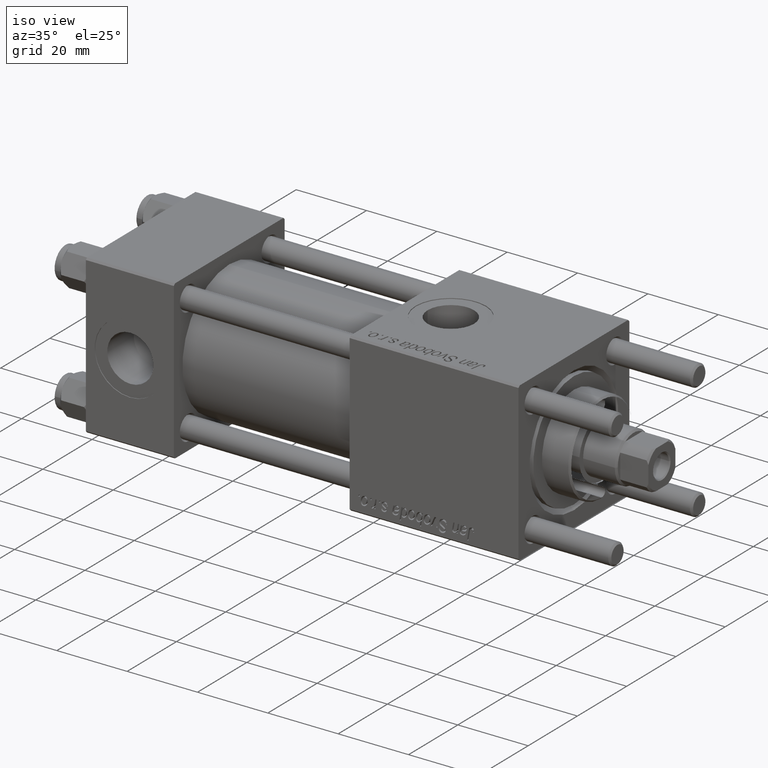
[diagram: clean part render]
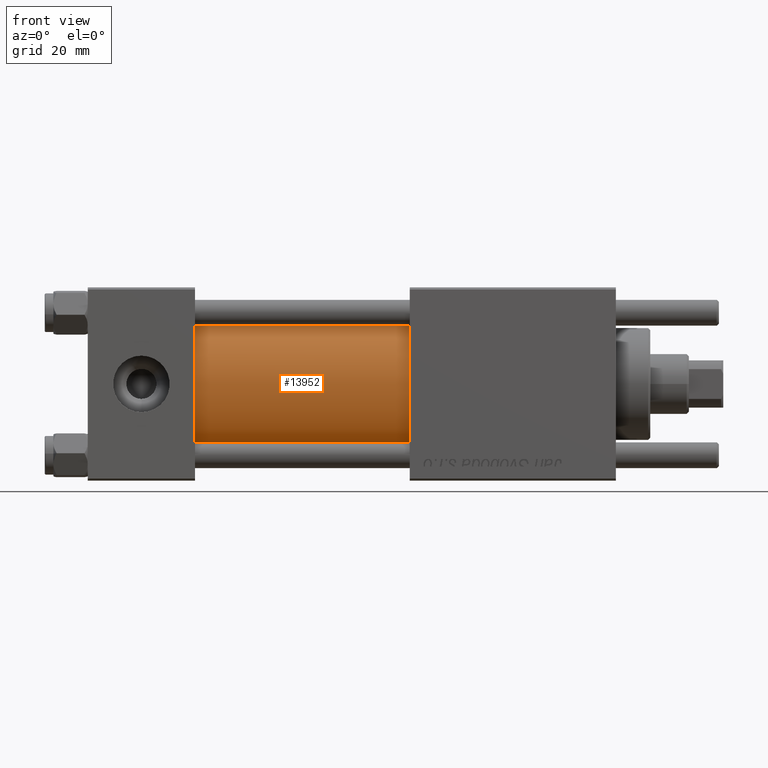
[diagram: tour spotlight — one face highlighted and labeled with its STEP entity id]
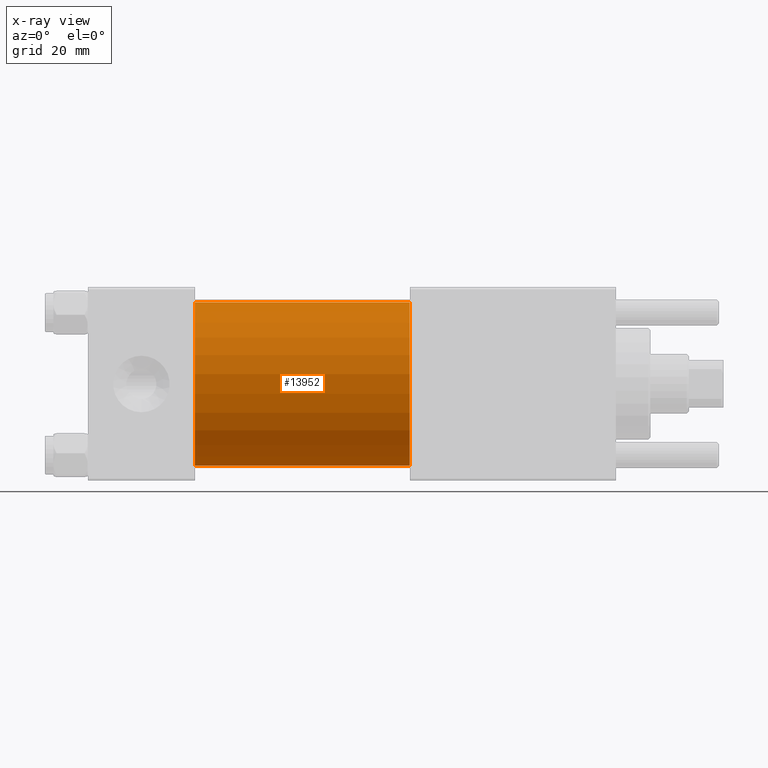
[diagram: x-ray of the same camera — body ghosted, this tour face saturated]
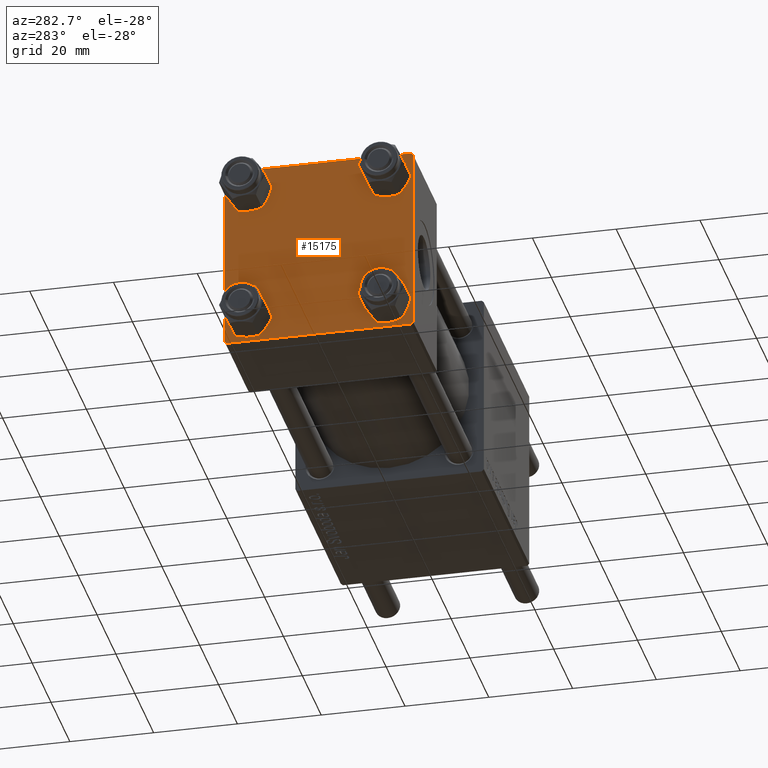
[diagram: tour spotlight — one face highlighted and labeled with its STEP entity id]
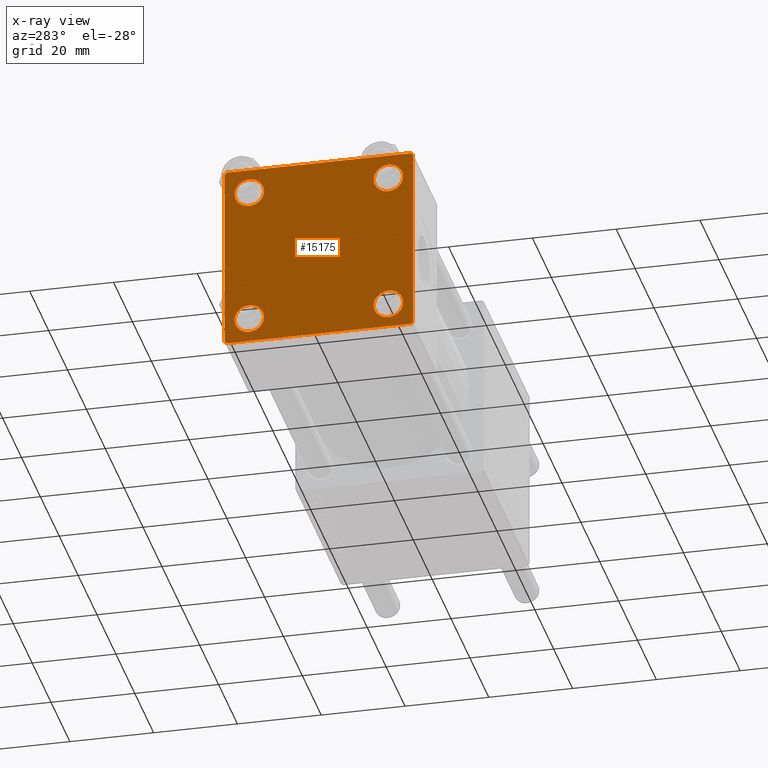
[diagram: x-ray of the same camera — body ghosted, this tour face saturated]
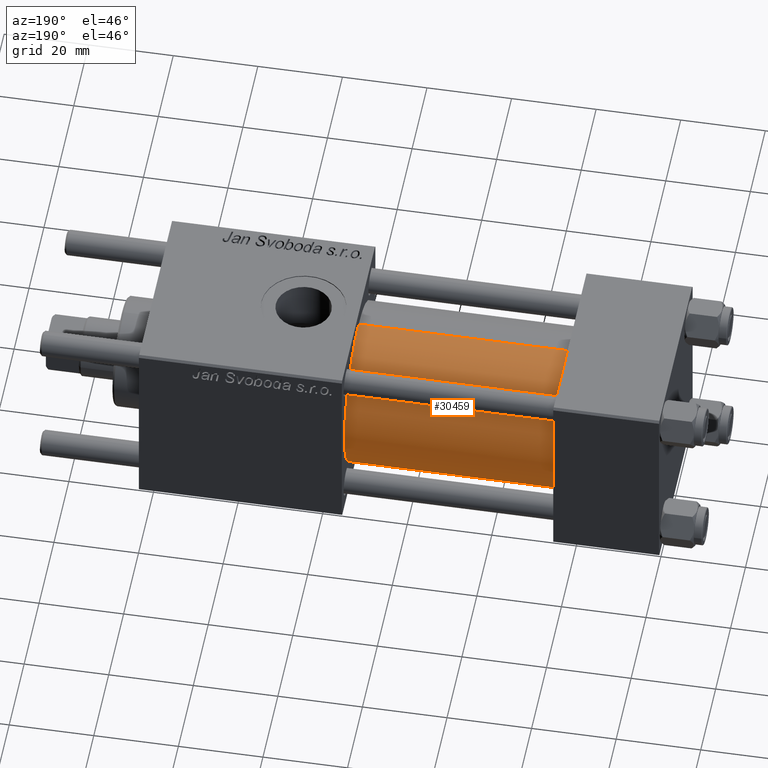
[diagram: tour spotlight — one face highlighted and labeled with its STEP entity id]
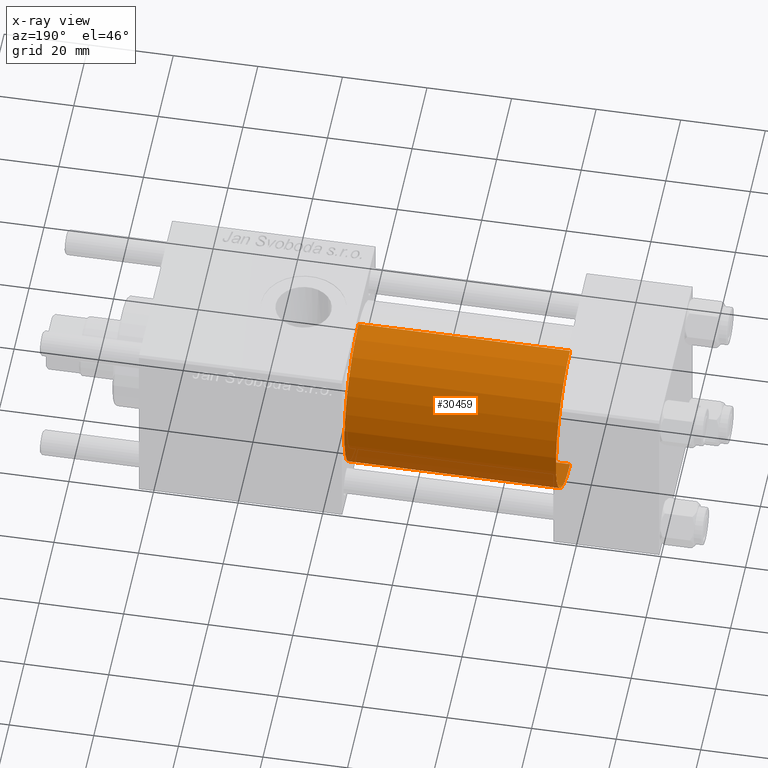
[diagram: x-ray of the same camera — body ghosted, this tour face saturated]
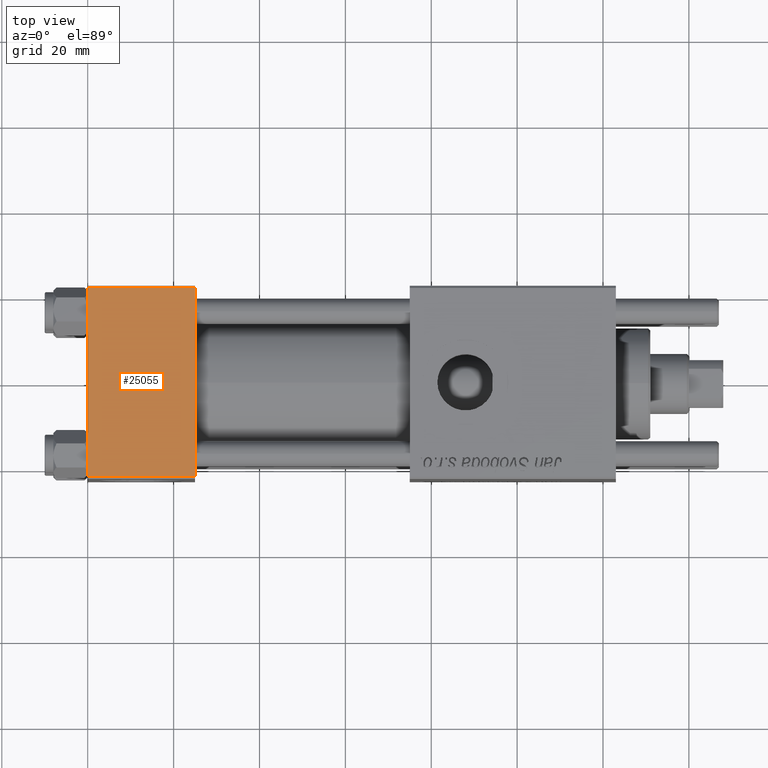
[diagram: tour spotlight — one face highlighted and labeled with its STEP entity id]
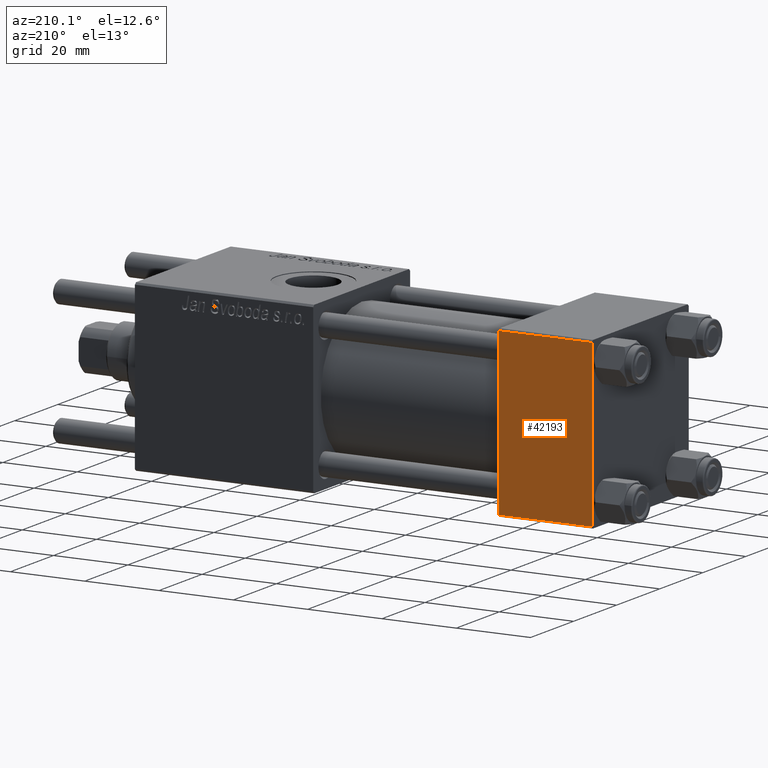
[diagram: tour spotlight — one face highlighted and labeled with its STEP entity id]
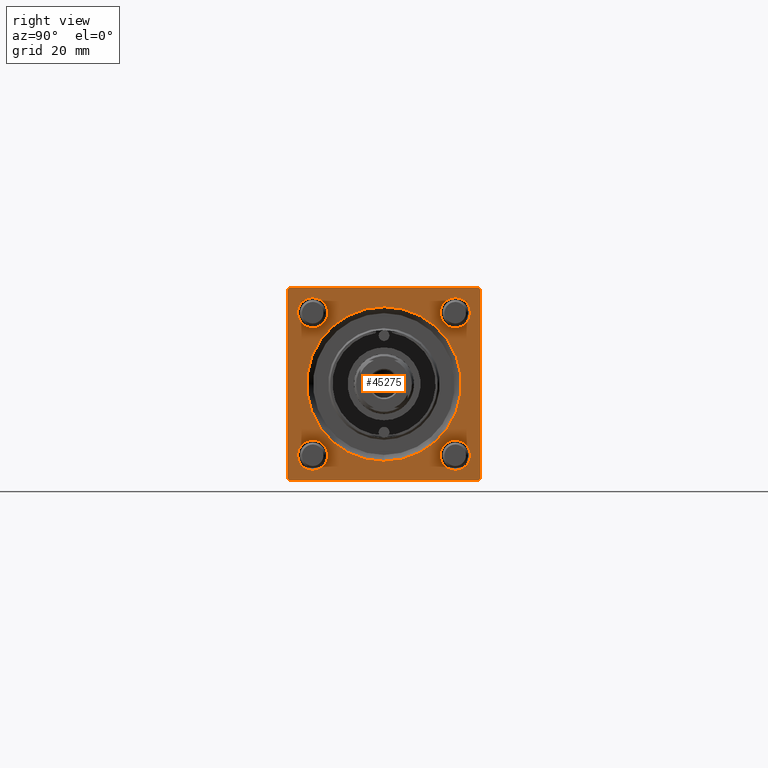
[diagram: tour spotlight — one face highlighted and labeled with its STEP entity id]
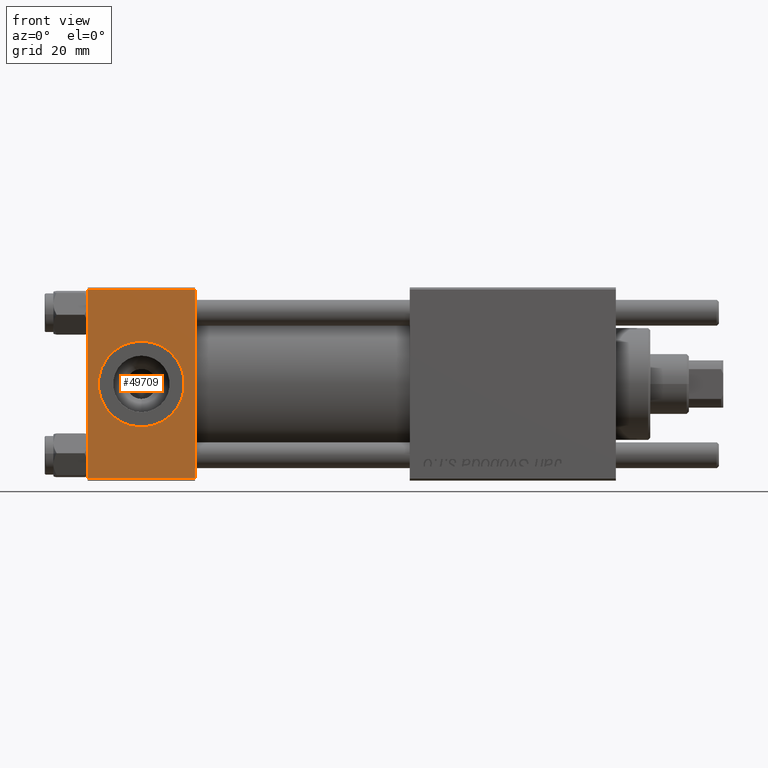
[diagram: tour spotlight — one face highlighted and labeled with its STEP entity id]
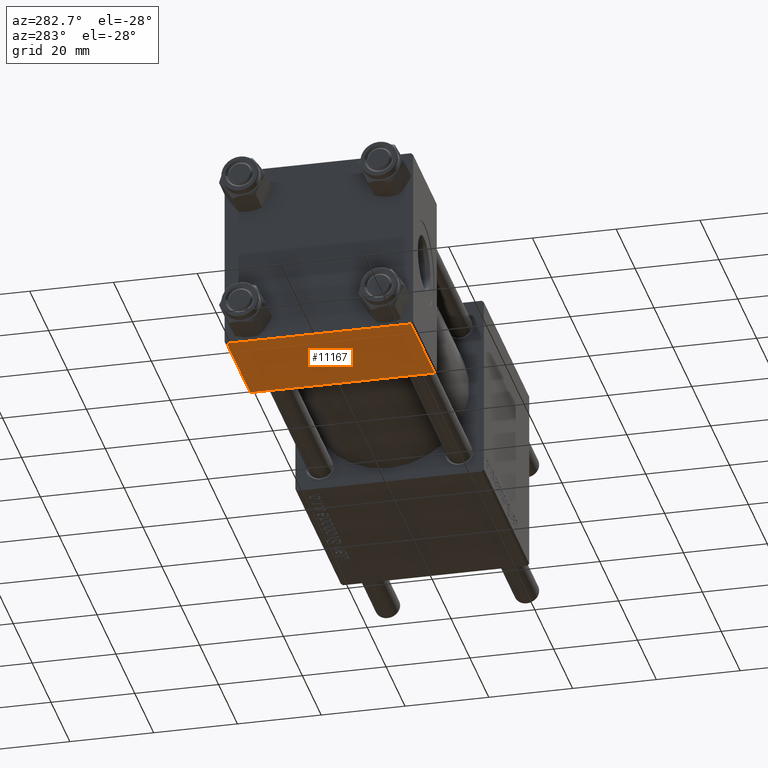
[diagram: tour spotlight — one face highlighted and labeled with its STEP entity id]
A machine part: a face-by-face anatomy tour. The part has 1162 B-rep faces; the first image is the clean iso view, then the 8 largest visible faces are spotlighted one at a time (largest first), each with its STEP entity span.

Face 1 — front view, entity #13952. An x-ray twin of the same camera follows (body ghosted, this face saturated) — the face is partly hidden behind the body. In plain terms, the highlighted cylindrical surface (partial cylindrical patch) has radius 19 mm, axis along (-1, -0, -0).
Definition (entity closure, byte-faithful):
#1939 = EDGE_CURVE ( 'NONE', #27965, #29925, #26414, .T. ) ;
#4153 = VERTEX_POINT ( 'NONE', #33216 ) ;
#7088 = AXIS2_PLACEMENT_3D ( 'NONE', #42812, #7385, #20351 ) ;
#7385 = DIRECTION ( 'NONE',  ( 1.000000000000000000, -0.000000000000000000, 0.000000000000000000 ) ) ;
#7469 = DIRECTION ( 'NONE',  ( 0.000000000000000000, 0.000000000000000000, 1.000000000000000000 ) ) ;
#7795 = ORIENTED_EDGE ( 'NONE', *, *, #45596, .F. ) ;
#10086 = LINE ( 'NONE', #10377, #44796 ) ;
#10377 = CARTESIAN_POINT ( 'NONE',  ( 75.00000000000001421, -2.752562955852396712E-16, -19.00000000000000000 ) ) ;
#12075 = DIRECTION ( 'NONE',  ( -1.000000000000000000, -0.000000000000000000, -0.000000000000000000 ) ) ;
#13952 = ADVANCED_FACE ( 'NONE', ( #33960 ), #51810, .T. ) ;
#17952 = CARTESIAN_POINT ( 'NONE',  ( 25.00000000000000000, -2.602085213965210642E-15, 19.00000000000000000 ) ) ;
#18656 = CARTESIAN_POINT ( 'NONE',  ( 25.00000000000000000, -2.752562955852396712E-16, -19.00000000000000000 ) ) ;
#20351 = DIRECTION ( 'NONE',  ( 0.000000000000000000, 0.000000000000000000, 1.000000000000000000 ) ) ;
#22696 = CARTESIAN_POINT ( 'NONE',  ( 75.00000000000001421, -2.602085213965210642E-15, 19.00000000000000000 ) ) ;
#23710 = AXIS2_PLACEMENT_3D ( 'NONE', #51776, #37373, #25287 ) ;
#25287 = DIRECTION ( 'NONE',  ( 0.000000000000000000, 0.000000000000000000, -1.000000000000000000 ) ) ;
#26414 = CIRCLE ( 'NONE', #7088, 19.00000000000000000 ) ;
#26446 = EDGE_LOOP ( 'NONE', ( #28446, #7795, #37067, #37032 ) ) ;
#27965 = VERTEX_POINT ( 'NONE', #17952 ) ;
#28446 = ORIENTED_EDGE ( 'NONE', *, *, #39453, .F. ) ;
#28881 = EDGE_CURVE ( 'NONE', #32479, #27965, #50724, .T. ) ;
#29925 = VERTEX_POINT ( 'NONE', #18656 ) ;
#30160 = CIRCLE ( 'NONE', #23710, 19.00000000000000000 ) ;
#32442 = VECTOR ( 'NONE', #42374, 1000.000000000000000 ) ;
#32479 = VERTEX_POINT ( 'NONE', #22696 ) ;
#33216 = CARTESIAN_POINT ( 'NONE',  ( 75.00000000000001421, -2.752562955852396712E-16, -19.00000000000000000 ) ) ;
#33960 = FACE_OUTER_BOUND ( 'NONE', #26446, .T. ) ;
#37032 = ORIENTED_EDGE ( 'NONE', *, *, #1939, .T. ) ;
#37067 = ORIENTED_EDGE ( 'NONE', *, *, #28881, .T. ) ;
#37373 = DIRECTION ( 'NONE',  ( 1.000000000000000000, 0.000000000000000000, 0.000000000000000000 ) ) ;
#37990 = CARTESIAN_POINT ( 'NONE',  ( 75.00000000000001421, -2.602085213965210642E-15, 0.000000000000000000 ) ) ;
#38589 = AXIS2_PLACEMENT_3D ( 'NONE', #37990, #12075, #7469 ) ;
#39453 = EDGE_CURVE ( 'NONE', #4153, #29925, #10086, .T. ) ;
#42374 = DIRECTION ( 'NONE',  ( -1.000000000000000000, -0.000000000000000000, -0.000000000000000000 ) ) ;
#42812 = CARTESIAN_POINT ( 'NONE',  ( 25.00000000000000000, -2.602085213965210642E-15, 0.000000000000000000 ) ) ;
#44796 = VECTOR ( 'NONE', #49254, 1000.000000000000000 ) ;
#45596 = EDGE_CURVE ( 'NONE', #32479, #4153, #30160, .T. ) ;
#47273 = CARTESIAN_POINT ( 'NONE',  ( 75.00000000000001421, -2.602085213965210642E-15, 19.00000000000000000 ) ) ;
#49254 = DIRECTION ( 'NONE',  ( -1.000000000000000000, -0.000000000000000000, -0.000000000000000000 ) ) ;
#50724 = LINE ( 'NONE', #47273, #32442 ) ;
#51776 = CARTESIAN_POINT ( 'NONE',  ( 75.00000000000001421, -2.602085213965210642E-15, 0.000000000000000000 ) ) ;
#51810 = CYLINDRICAL_SURFACE ( 'NONE', #38589, 19.00000000000000000 ) ;

Face 2 — auxiliary view, entity #15175. An x-ray twin of the same camera follows (body ghosted, this face saturated) — the face is partly hidden behind the body. In plain terms, the highlighted planar face has unit normal (-1, 0, 0).
Definition (entity closure, byte-faithful):
#111 = EDGE_CURVE ( 'NONE', #16282, #22349, #33120, .T. ) ;
#296 = CARTESIAN_POINT ( 'NONE',  ( 0.000000000000000000, 22.50000000000000000, 22.50000000000000355 ) ) ;
#536 = ORIENTED_EDGE ( 'NONE', *, *, #13663, .T. ) ;
#835 = LINE ( 'NONE', #5422, #28619 ) ;
#1177 = LINE ( 'NONE', #48679, #50730 ) ;
#1898 = CARTESIAN_POINT ( 'NONE',  ( 0.000000000000000000, 16.59999999999999787, -20.10000000000000142 ) ) ;
#2840 = VERTEX_POINT ( 'NONE', #1898 ) ;
#4755 = VERTEX_POINT ( 'NONE', #29909 ) ;
#4798 = FACE_BOUND ( 'NONE', #34257, .T. ) ;
#4994 = CARTESIAN_POINT ( 'NONE',  ( 0.000000000000000000, 22.50000000000000000, -22.49999999999999645 ) ) ;
#5418 = EDGE_CURVE ( 'NONE', #27696, #2840, #48446, .T. ) ;
#5422 = CARTESIAN_POINT ( 'NONE',  ( 0.000000000000000000, -22.25000000000014566, -22.24999999999984013 ) ) ;
#5523 = AXIS2_PLACEMENT_3D ( 'NONE', #14086, #10613, #23578 ) ;
#5569 = VECTOR ( 'NONE', #34645, 1000.000000000000114 ) ;
#5922 = ORIENTED_EDGE ( 'NONE', *, *, #25213, .T. ) ;
#6078 = EDGE_LOOP ( 'NONE', ( #22424, #19259 ) ) ;
#6143 = EDGE_CURVE ( 'NONE', #22349, #16282, #47549, .T. ) ;
#6354 = DIRECTION ( 'NONE',  ( 1.000000000000000000, -0.000000000000000000, 0.000000000000000000 ) ) ;
#6445 = AXIS2_PLACEMENT_3D ( 'NONE', #42998, #42128, #55962 ) ;
#6495 = VERTEX_POINT ( 'NONE', #24223 ) ;
#7056 = AXIS2_PLACEMENT_3D ( 'NONE', #17585, #26785, #52710 ) ;
#7076 = DIRECTION ( 'NONE',  ( 0.000000000000000000, 0.000000000000000000, -1.000000000000000000 ) ) ;
#8162 = AXIS2_PLACEMENT_3D ( 'NONE', #29537, #41645, #50844 ) ;
#9021 = ORIENTED_EDGE ( 'NONE', *, *, #21577, .T. ) ;
#9193 = VERTEX_POINT ( 'NONE', #30855 ) ;
#9340 = CIRCLE ( 'NONE', #48883, 3.499999999999996003 ) ;
#9776 = LINE ( 'NONE', #43315, #20071 ) ;
#9813 = CARTESIAN_POINT ( 'NONE',  ( 0.000000000000000000, 16.59999999999999787, -16.60000000000000497 ) ) ;
#10037 = CIRCLE ( 'NONE', #34878, 3.499999999999996003 ) ;
#10613 = DIRECTION ( 'NONE',  ( 1.000000000000000000, -0.000000000000000000, 0.000000000000000000 ) ) ;
#11070 = EDGE_CURVE ( 'NONE', #21204, #56028, #9776, .T. ) ;
#11303 = DIRECTION ( 'NONE',  ( 0.000000000000000000, 0.000000000000000000, 1.000000000000000000 ) ) ;
#11583 = DIRECTION ( 'NONE',  ( 1.000000000000000000, -0.000000000000000000, 0.000000000000000000 ) ) ;
#11712 = ORIENTED_EDGE ( 'NONE', *, *, #55522, .F. ) ;
#12640 = CARTESIAN_POINT ( 'NONE',  ( 0.000000000000000000, 21.99999999999999289, -22.49999999999999645 ) ) ;
#12972 = VECTOR ( 'NONE', #30238, 1000.000000000000000 ) ;
#13663 = EDGE_CURVE ( 'NONE', #9193, #51869, #10037, .T. ) ;
#13899 = CARTESIAN_POINT ( 'NONE',  ( 0.000000000000000000, 22.50000000000000000, -21.99999999999996803 ) ) ;
#13993 = FACE_BOUND ( 'NONE', #47212, .T. ) ;
#14086 = CARTESIAN_POINT ( 'NONE',  ( 0.000000000000000000, 16.59999999999999787, 16.60000000000000497 ) ) ;
#15175 = ADVANCED_FACE ( 'NONE', ( #13993, #52596, #4798, #39345, #35881 ), #33975, .T. ) ;
#15671 = DIRECTION ( 'NONE',  ( 1.000000000000000000, -0.000000000000000000, 0.000000000000000000 ) ) ;
#15837 = LINE ( 'NONE', #38865, #19612 ) ;
#16215 = EDGE_CURVE ( 'NONE', #41148, #6495, #22094, .T. ) ;
#16228 = CARTESIAN_POINT ( 'NONE',  ( 0.000000000000000000, 22.24999999999999645, 22.24999999999999645 ) ) ;
#16282 = VERTEX_POINT ( 'NONE', #25695 ) ;
#16613 = CARTESIAN_POINT ( 'NONE',  ( 0.000000000000000000, 16.59999999999999787, -13.10000000000000675 ) ) ;
#16633 = ORIENTED_EDGE ( 'NONE', *, *, #5418, .T. ) ;
#17585 = CARTESIAN_POINT ( 'NONE',  ( 0.000000000000000000, 16.59999999999999787, -16.60000000000000497 ) ) ;
#17748 = DIRECTION ( 'NONE',  ( -1.000000000000000000, 0.000000000000000000, -0.000000000000000000 ) ) ;
#17958 = ORIENTED_EDGE ( 'NONE', *, *, #27131, .T. ) ;
#18426 = AXIS2_PLACEMENT_3D ( 'NONE', #20807, #11583, #11303 ) ;
#18720 = DIRECTION ( 'NONE',  ( -0.000000000000000000, -0.7071067811865426878, -0.7071067811865524577 ) ) ;
#19103 = CARTESIAN_POINT ( 'NONE',  ( 0.000000000000000000, -16.59999999999999076, -13.10000000000001030 ) ) ;
#19230 = DIRECTION ( 'NONE',  ( 0.000000000000000000, -0.7071067811865426878, 0.7071067811865524577 ) ) ;
#19259 = ORIENTED_EDGE ( 'NONE', *, *, #48337, .T. ) ;
#19612 = VECTOR ( 'NONE', #56442, 1000.000000000000000 ) ;
#20071 = VECTOR ( 'NONE', #21695, 999.9999999999998863 ) ;
#20684 = EDGE_CURVE ( 'NONE', #27298, #37203, #36086, .T. ) ;
#20807 = CARTESIAN_POINT ( 'NONE',  ( 0.000000000000000000, -16.59999999999999076, -16.60000000000000853 ) ) ;
#20849 = DIRECTION ( 'NONE',  ( 0.000000000000000000, 0.000000000000000000, 1.000000000000000000 ) ) ;
#21121 = EDGE_CURVE ( 'NONE', #51869, #9193, #42449, .T. ) ;
#21204 = VERTEX_POINT ( 'NONE', #54675 ) ;
#21577 = EDGE_CURVE ( 'NONE', #24928, #4755, #52492, .T. ) ;
#21695 = DIRECTION ( 'NONE',  ( -0.000000000000000000, 0.7071067811865525687, 0.7071067811865425767 ) ) ;
#22068 = DIRECTION ( 'NONE',  ( -0.000000000000000000, 0.000000000000000000, 1.000000000000000000 ) ) ;
#22094 = CIRCLE ( 'NONE', #18426, 3.499999999999996003 ) ;
#22349 = VERTEX_POINT ( 'NONE', #44221 ) ;
#22424 = ORIENTED_EDGE ( 'NONE', *, *, #16215, .T. ) ;
#22662 = DIRECTION ( 'NONE',  ( 0.000000000000000000, 0.000000000000000000, 1.000000000000000000 ) ) ;
#23578 = DIRECTION ( 'NONE',  ( 0.000000000000000000, 0.000000000000000000, 1.000000000000000000 ) ) ;
#23919 = DIRECTION ( 'NONE',  ( 0.000000000000000000, 0.000000000000000000, 1.000000000000000000 ) ) ;
#24223 = CARTESIAN_POINT ( 'NONE',  ( 0.000000000000000000, -16.59999999999999076, -20.10000000000000497 ) ) ;
#24271 = ORIENTED_EDGE ( 'NONE', *, *, #20684, .T. ) ;
#24285 = CARTESIAN_POINT ( 'NONE',  ( 0.000000000000000000, -21.99999999999997868, 22.50000000000000000 ) ) ;
#24928 = VERTEX_POINT ( 'NONE', #37423 ) ;
#25213 = EDGE_CURVE ( 'NONE', #37203, #46477, #835, .T. ) ;
#25695 = CARTESIAN_POINT ( 'NONE',  ( 0.000000000000000000, -16.59999999999999076, 20.10000000000000853 ) ) ;
#25831 = EDGE_CURVE ( 'NONE', #2840, #27696, #9340, .T. ) ;
#26785 = DIRECTION ( 'NONE',  ( 1.000000000000000000, -0.000000000000000000, 0.000000000000000000 ) ) ;
#27131 = EDGE_CURVE ( 'NONE', #28669, #27298, #1177, .T. ) ;
#27298 = VERTEX_POINT ( 'NONE', #12640 ) ;
#27546 = CARTESIAN_POINT ( 'NONE',  ( 0.000000000000000000, 16.59999999999999787, 20.10000000000000142 ) ) ;
#27696 = VERTEX_POINT ( 'NONE', #16613 ) ;
#28457 = ORIENTED_EDGE ( 'NONE', *, *, #6143, .T. ) ;
#28619 = VECTOR ( 'NONE', #19230, 1000.000000000000000 ) ;
#28669 = VERTEX_POINT ( 'NONE', #13899 ) ;
#29166 = ORIENTED_EDGE ( 'NONE', *, *, #30678, .F. ) ;
#29537 = CARTESIAN_POINT ( 'NONE',  ( 0.000000000000000000, -16.59999999999999076, -16.60000000000000853 ) ) ;
#29909 = CARTESIAN_POINT ( 'NONE',  ( 0.000000000000000000, 22.50000000000000000, 21.99999999999999645 ) ) ;
#30238 = DIRECTION ( 'NONE',  ( 0.000000000000000000, -1.000000000000000000, -7.709882115452476934E-17 ) ) ;
#30678 = EDGE_CURVE ( 'NONE', #21204, #46477, #15837, .T. ) ;
#30855 = CARTESIAN_POINT ( 'NONE',  ( 0.000000000000000000, 16.59999999999999787, 13.10000000000000675 ) ) ;
#31138 = CIRCLE ( 'NONE', #8162, 3.499999999999996003 ) ;
#33120 = CIRCLE ( 'NONE', #6445, 3.499999999999996003 ) ;
#33154 = CARTESIAN_POINT ( 'NONE',  ( 0.000000000000000000, -21.99999999999997158, -22.50000000000000711 ) ) ;
#33975 = PLANE ( 'NONE',  #36762 ) ;
#34257 = EDGE_LOOP ( 'NONE', ( #16633, #48030 ) ) ;
#34645 = DIRECTION ( 'NONE',  ( 0.000000000000000000, 0.7071067811865474617, -0.7071067811865474617 ) ) ;
#34878 = AXIS2_PLACEMENT_3D ( 'NONE', #51081, #15671, #20849 ) ;
#35625 = CARTESIAN_POINT ( 'NONE',  ( 0.000000000000000000, -16.59999999999999076, 16.60000000000000853 ) ) ;
#35881 = FACE_OUTER_BOUND ( 'NONE', #36740, .T. ) ;
#36086 = LINE ( 'NONE', #4994, #52422 ) ;
#36740 = EDGE_LOOP ( 'NONE', ( #41011, #17958, #24271, #5922, #29166, #46530, #11712, #9021 ) ) ;
#36762 = AXIS2_PLACEMENT_3D ( 'NONE', #38285, #17748, #22068 ) ;
#37203 = VERTEX_POINT ( 'NONE', #33154 ) ;
#37423 = CARTESIAN_POINT ( 'NONE',  ( 0.000000000000000000, 21.99999999999999289, 22.50000000000000355 ) ) ;
#38285 = CARTESIAN_POINT ( 'NONE',  ( 0.000000000000000000, 0.000000000000000000, 0.000000000000000000 ) ) ;
#38865 = CARTESIAN_POINT ( 'NONE',  ( 0.000000000000000000, -22.50000000000000000, 22.50000000000000000 ) ) ;
#39345 = FACE_BOUND ( 'NONE', #49815, .T. ) ;
#40409 = DIRECTION ( 'NONE',  ( 0.000000000000000000, -1.000000000000000000, -2.312964634635742957E-16 ) ) ;
#41011 = ORIENTED_EDGE ( 'NONE', *, *, #51047, .T. ) ;
#41148 = VERTEX_POINT ( 'NONE', #19103 ) ;
#41645 = DIRECTION ( 'NONE',  ( 1.000000000000000000, -0.000000000000000000, 0.000000000000000000 ) ) ;
#42128 = DIRECTION ( 'NONE',  ( 1.000000000000000000, -0.000000000000000000, 0.000000000000000000 ) ) ;
#42449 = CIRCLE ( 'NONE', #5523, 3.499999999999996003 ) ;
#42998 = CARTESIAN_POINT ( 'NONE',  ( 0.000000000000000000, -16.59999999999999076, 16.60000000000000853 ) ) ;
#43297 = CARTESIAN_POINT ( 'NONE',  ( 0.000000000000000000, -22.50000000000000000, -21.99999999999997158 ) ) ;
#43315 = CARTESIAN_POINT ( 'NONE',  ( -0.000000000000000000, -22.24999999999984013, 22.25000000000015277 ) ) ;
#43637 = ORIENTED_EDGE ( 'NONE', *, *, #21121, .T. ) ;
#44221 = CARTESIAN_POINT ( 'NONE',  ( 0.000000000000000000, -16.59999999999999076, 13.10000000000001030 ) ) ;
#46477 = VERTEX_POINT ( 'NONE', #43297 ) ;
#46530 = ORIENTED_EDGE ( 'NONE', *, *, #11070, .T. ) ;
#47212 = EDGE_LOOP ( 'NONE', ( #54934, #28457 ) ) ;
#47400 = LINE ( 'NONE', #56334, #53285 ) ;
#47549 = CIRCLE ( 'NONE', #49381, 3.499999999999996003 ) ;
#48030 = ORIENTED_EDGE ( 'NONE', *, *, #25831, .T. ) ;
#48337 = EDGE_CURVE ( 'NONE', #6495, #41148, #31138, .T. ) ;
#48446 = CIRCLE ( 'NONE', #7056, 3.499999999999996003 ) ;
#48679 = CARTESIAN_POINT ( 'NONE',  ( 0.000000000000000000, 22.25000000000014566, -22.24999999999984013 ) ) ;
#48883 = AXIS2_PLACEMENT_3D ( 'NONE', #9813, #6354, #23919 ) ;
#49381 = AXIS2_PLACEMENT_3D ( 'NONE', #35625, #53183, #22662 ) ;
#49815 = EDGE_LOOP ( 'NONE', ( #43637, #536 ) ) ;
#50730 = VECTOR ( 'NONE', #18720, 1000.000000000000000 ) ;
#50844 = DIRECTION ( 'NONE',  ( 0.000000000000000000, 0.000000000000000000, 1.000000000000000000 ) ) ;
#51047 = EDGE_CURVE ( 'NONE', #4755, #28669, #47400, .T. ) ;
#51081 = CARTESIAN_POINT ( 'NONE',  ( 0.000000000000000000, 16.59999999999999787, 16.60000000000000497 ) ) ;
#51556 = LINE ( 'NONE', #296, #12972 ) ;
#51869 = VERTEX_POINT ( 'NONE', #27546 ) ;
#52422 = VECTOR ( 'NONE', #40409, 1000.000000000000000 ) ;
#52492 = LINE ( 'NONE', #16228, #5569 ) ;
#52596 = FACE_BOUND ( 'NONE', #6078, .T. ) ;
#52710 = DIRECTION ( 'NONE',  ( 0.000000000000000000, 0.000000000000000000, 1.000000000000000000 ) ) ;
#53183 = DIRECTION ( 'NONE',  ( 1.000000000000000000, -0.000000000000000000, 0.000000000000000000 ) ) ;
#53285 = VECTOR ( 'NONE', #7076, 1000.000000000000000 ) ;
#54675 = CARTESIAN_POINT ( 'NONE',  ( 0.000000000000000000, -22.50000000000000000, 22.00000000000000000 ) ) ;
#54934 = ORIENTED_EDGE ( 'NONE', *, *, #111, .T. ) ;
#55522 = EDGE_CURVE ( 'NONE', #24928, #56028, #51556, .T. ) ;
#55962 = DIRECTION ( 'NONE',  ( 0.000000000000000000, 0.000000000000000000, 1.000000000000000000 ) ) ;
#56028 = VERTEX_POINT ( 'NONE', #24285 ) ;
#56334 = CARTESIAN_POINT ( 'NONE',  ( 0.000000000000000000, 22.50000000000000000, 22.50000000000000355 ) ) ;
#56442 = DIRECTION ( 'NONE',  ( 0.000000000000000000, 0.000000000000000000, -1.000000000000000000 ) ) ;

Face 3 — auxiliary view, entity #30459. An x-ray twin of the same camera follows (body ghosted, this face saturated) — the face is partly hidden behind the body. In plain terms, the highlighted cylindrical surface (partial cylindrical patch) has radius 19 mm, axis along (-1, -0, -0).
Definition (entity closure, byte-faithful):
#213 = DIRECTION ( 'NONE',  ( 1.000000000000000000, -0.000000000000000000, 0.000000000000000000 ) ) ;
#1772 = EDGE_CURVE ( 'NONE', #4153, #32479, #5246, .T. ) ;
#4153 = VERTEX_POINT ( 'NONE', #33216 ) ;
#4368 = DIRECTION ( 'NONE',  ( 0.000000000000000000, 0.000000000000000000, 1.000000000000000000 ) ) ;
#5246 = CIRCLE ( 'NONE', #13548, 19.00000000000000000 ) ;
#7980 = DIRECTION ( 'NONE',  ( 0.000000000000000000, 0.000000000000000000, 1.000000000000000000 ) ) ;
#10086 = LINE ( 'NONE', #10377, #44796 ) ;
#10377 = CARTESIAN_POINT ( 'NONE',  ( 75.00000000000001421, -2.752562955852396712E-16, -19.00000000000000000 ) ) ;
#10575 = ORIENTED_EDGE ( 'NONE', *, *, #1772, .F. ) ;
#13548 = AXIS2_PLACEMENT_3D ( 'NONE', #20422, #25592, #16677 ) ;
#16677 = DIRECTION ( 'NONE',  ( 0.000000000000000000, 0.000000000000000000, -1.000000000000000000 ) ) ;
#17952 = CARTESIAN_POINT ( 'NONE',  ( 25.00000000000000000, -2.602085213965210642E-15, 19.00000000000000000 ) ) ;
#18656 = CARTESIAN_POINT ( 'NONE',  ( 25.00000000000000000, -2.752562955852396712E-16, -19.00000000000000000 ) ) ;
#20422 = CARTESIAN_POINT ( 'NONE',  ( 75.00000000000001421, -2.602085213965210642E-15, 0.000000000000000000 ) ) ;
#22696 = CARTESIAN_POINT ( 'NONE',  ( 75.00000000000001421, -2.602085213965210642E-15, 19.00000000000000000 ) ) ;
#23065 = DIRECTION ( 'NONE',  ( -1.000000000000000000, -0.000000000000000000, -0.000000000000000000 ) ) ;
#24090 = ORIENTED_EDGE ( 'NONE', *, *, #28881, .F. ) ;
#25441 = EDGE_CURVE ( 'NONE', #29925, #27965, #36926, .T. ) ;
#25592 = DIRECTION ( 'NONE',  ( 1.000000000000000000, 0.000000000000000000, 0.000000000000000000 ) ) ;
#27965 = VERTEX_POINT ( 'NONE', #17952 ) ;
#28881 = EDGE_CURVE ( 'NONE', #32479, #27965, #50724, .T. ) ;
#29925 = VERTEX_POINT ( 'NONE', #18656 ) ;
#30459 = ADVANCED_FACE ( 'NONE', ( #53585 ), #31688, .T. ) ;
#30479 = AXIS2_PLACEMENT_3D ( 'NONE', #39639, #213, #7980 ) ;
#31688 = CYLINDRICAL_SURFACE ( 'NONE', #37993, 19.00000000000000000 ) ;
#32442 = VECTOR ( 'NONE', #42374, 1000.000000000000000 ) ;
#32479 = VERTEX_POINT ( 'NONE', #22696 ) ;
#33216 = CARTESIAN_POINT ( 'NONE',  ( 75.00000000000001421, -2.752562955852396712E-16, -19.00000000000000000 ) ) ;
#34409 = ORIENTED_EDGE ( 'NONE', *, *, #25441, .T. ) ;
#34873 = EDGE_LOOP ( 'NONE', ( #10575, #54872, #34409, #24090 ) ) ;
#36926 = CIRCLE ( 'NONE', #30479, 19.00000000000000000 ) ;
#37993 = AXIS2_PLACEMENT_3D ( 'NONE', #44954, #23065, #4368 ) ;
#39453 = EDGE_CURVE ( 'NONE', #4153, #29925, #10086, .T. ) ;
#39639 = CARTESIAN_POINT ( 'NONE',  ( 25.00000000000000000, -2.602085213965210642E-15, 0.000000000000000000 ) ) ;
#42374 = DIRECTION ( 'NONE',  ( -1.000000000000000000, -0.000000000000000000, -0.000000000000000000 ) ) ;
#44796 = VECTOR ( 'NONE', #49254, 1000.000000000000000 ) ;
#44954 = CARTESIAN_POINT ( 'NONE',  ( 75.00000000000001421, -2.602085213965210642E-15, 0.000000000000000000 ) ) ;
#47273 = CARTESIAN_POINT ( 'NONE',  ( 75.00000000000001421, -2.602085213965210642E-15, 19.00000000000000000 ) ) ;
#49254 = DIRECTION ( 'NONE',  ( -1.000000000000000000, -0.000000000000000000, -0.000000000000000000 ) ) ;
#50724 = LINE ( 'NONE', #47273, #32442 ) ;
#53585 = FACE_OUTER_BOUND ( 'NONE', #34873, .T. ) ;
#54872 = ORIENTED_EDGE ( 'NONE', *, *, #39453, .T. ) ;

Face 4 — top view, entity #25055. In plain terms, the highlighted planar face has unit normal (0, 0, -1).
Definition (entity closure, byte-faithful):
#277 = DIRECTION ( 'NONE',  ( 0.000000000000000000, 1.000000000000000000, 7.709882115452476934E-17 ) ) ;
#296 = CARTESIAN_POINT ( 'NONE',  ( 0.000000000000000000, 22.50000000000000000, 22.50000000000000355 ) ) ;
#2000 = AXIS2_PLACEMENT_3D ( 'NONE', #48347, #8887, #277 ) ;
#2445 = CARTESIAN_POINT ( 'NONE',  ( 25.00000000000000000, 22.50000000000000000, 22.50000000000000355 ) ) ;
#3458 = PLANE ( 'NONE',  #2000 ) ;
#6704 = VERTEX_POINT ( 'NONE', #35146 ) ;
#8337 = FACE_OUTER_BOUND ( 'NONE', #25336, .T. ) ;
#8887 = DIRECTION ( 'NONE',  ( 0.000000000000000000, 7.709882115452476934E-17, -1.000000000000000000 ) ) ;
#10511 = DIRECTION ( 'NONE',  ( 0.000000000000000000, -1.000000000000000000, -7.709882115452476934E-17 ) ) ;
#12972 = VECTOR ( 'NONE', #30238, 1000.000000000000000 ) ;
#16430 = VECTOR ( 'NONE', #36431, 1000.000000000000000 ) ;
#18864 = LINE ( 'NONE', #19439, #16430 ) ;
#19439 = CARTESIAN_POINT ( 'NONE',  ( 0.000000000000000000, 21.99999999999999289, 22.50000000000000355 ) ) ;
#22941 = ORIENTED_EDGE ( 'NONE', *, *, #48508, .T. ) ;
#24285 = CARTESIAN_POINT ( 'NONE',  ( 0.000000000000000000, -21.99999999999997868, 22.50000000000000000 ) ) ;
#24928 = VERTEX_POINT ( 'NONE', #37423 ) ;
#25055 = ADVANCED_FACE ( 'NONE', ( #8337 ), #3458, .F. ) ;
#25336 = EDGE_LOOP ( 'NONE', ( #47462, #53479, #42801, #22941 ) ) ;
#29808 = LINE ( 'NONE', #51968, #39475 ) ;
#29825 = VERTEX_POINT ( 'NONE', #37412 ) ;
#30238 = DIRECTION ( 'NONE',  ( 0.000000000000000000, -1.000000000000000000, -7.709882115452476934E-17 ) ) ;
#35146 = CARTESIAN_POINT ( 'NONE',  ( 25.00000000000000000, 21.99999999999999289, 22.50000000000000355 ) ) ;
#36431 = DIRECTION ( 'NONE',  ( -1.000000000000000000, 0.000000000000000000, 0.000000000000000000 ) ) ;
#37412 = CARTESIAN_POINT ( 'NONE',  ( 25.00000000000000000, -21.99999999999997868, 22.50000000000000000 ) ) ;
#37423 = CARTESIAN_POINT ( 'NONE',  ( 0.000000000000000000, 21.99999999999999289, 22.50000000000000355 ) ) ;
#37586 = VECTOR ( 'NONE', #10511, 1000.000000000000000 ) ;
#38727 = DIRECTION ( 'NONE',  ( 1.000000000000000000, 0.000000000000000000, 0.000000000000000000 ) ) ;
#39475 = VECTOR ( 'NONE', #38727, 1000.000000000000000 ) ;
#41611 = LINE ( 'NONE', #2445, #37586 ) ;
#42801 = ORIENTED_EDGE ( 'NONE', *, *, #48396, .F. ) ;
#47462 = ORIENTED_EDGE ( 'NONE', *, *, #55522, .T. ) ;
#48347 = CARTESIAN_POINT ( 'NONE',  ( 25.00000000000000000, 22.50000000000000000, 22.50000000000000355 ) ) ;
#48396 = EDGE_CURVE ( 'NONE', #6704, #29825, #41611, .T. ) ;
#48508 = EDGE_CURVE ( 'NONE', #6704, #24928, #18864, .T. ) ;
#49489 = EDGE_CURVE ( 'NONE', #56028, #29825, #29808, .T. ) ;
#51556 = LINE ( 'NONE', #296, #12972 ) ;
#51968 = CARTESIAN_POINT ( 'NONE',  ( 25.00000000000000000, -21.99999999999999289, 22.50000000000000000 ) ) ;
#53479 = ORIENTED_EDGE ( 'NONE', *, *, #49489, .T. ) ;
#55522 = EDGE_CURVE ( 'NONE', #24928, #56028, #51556, .T. ) ;
#56028 = VERTEX_POINT ( 'NONE', #24285 ) ;

Face 5 — auxiliary view, entity #42193. In plain terms, the highlighted planar face has unit normal (0, 1, 0).
Definition (entity closure, byte-faithful):
#1082 = ORIENTED_EDGE ( 'NONE', *, *, #13921, .T. ) ;
#3875 = CARTESIAN_POINT ( 'NONE',  ( 25.00000000000000000, 22.50000000000000000, 21.99999999999999645 ) ) ;
#4755 = VERTEX_POINT ( 'NONE', #29909 ) ;
#5201 = CARTESIAN_POINT ( 'NONE',  ( 25.00000000000000000, 22.50000000000000000, -21.99999999999998224 ) ) ;
#7076 = DIRECTION ( 'NONE',  ( 0.000000000000000000, 0.000000000000000000, -1.000000000000000000 ) ) ;
#8320 = VERTEX_POINT ( 'NONE', #3875 ) ;
#10472 = DIRECTION ( 'NONE',  ( 0.000000000000000000, -0.000000000000000000, 1.000000000000000000 ) ) ;
#13899 = CARTESIAN_POINT ( 'NONE',  ( 0.000000000000000000, 22.50000000000000000, -21.99999999999996803 ) ) ;
#13921 = EDGE_CURVE ( 'NONE', #8320, #51072, #43180, .T. ) ;
#14515 = DIRECTION ( 'NONE',  ( -0.000000000000000000, 1.000000000000000000, 0.000000000000000000 ) ) ;
#15004 = EDGE_CURVE ( 'NONE', #51072, #28669, #53582, .T. ) ;
#15285 = LINE ( 'NONE', #44974, #23858 ) ;
#17145 = CARTESIAN_POINT ( 'NONE',  ( 25.00000000000000000, 22.50000000000000000, -21.99999999999996803 ) ) ;
#18607 = ORIENTED_EDGE ( 'NONE', *, *, #51047, .F. ) ;
#19292 = VECTOR ( 'NONE', #49543, 1000.000000000000000 ) ;
#23082 = DIRECTION ( 'NONE',  ( 1.000000000000000000, 0.000000000000000000, 0.000000000000000000 ) ) ;
#23612 = AXIS2_PLACEMENT_3D ( 'NONE', #49935, #14515, #10472 ) ;
#23858 = VECTOR ( 'NONE', #23082, 1000.000000000000000 ) ;
#28669 = VERTEX_POINT ( 'NONE', #13899 ) ;
#29909 = CARTESIAN_POINT ( 'NONE',  ( 0.000000000000000000, 22.50000000000000000, 21.99999999999999645 ) ) ;
#34253 = CARTESIAN_POINT ( 'NONE',  ( 25.00000000000000000, 22.50000000000000000, 22.50000000000000355 ) ) ;
#40439 = FACE_OUTER_BOUND ( 'NONE', #54136, .T. ) ;
#42193 = ADVANCED_FACE ( 'NONE', ( #40439 ), #54804, .T. ) ;
#43180 = LINE ( 'NONE', #34253, #45955 ) ;
#44974 = CARTESIAN_POINT ( 'NONE',  ( 25.00000000000000000, 22.50000000000000000, 21.99999999999999645 ) ) ;
#45955 = VECTOR ( 'NONE', #55852, 1000.000000000000000 ) ;
#47400 = LINE ( 'NONE', #56334, #53285 ) ;
#47466 = ORIENTED_EDGE ( 'NONE', *, *, #15004, .T. ) ;
#49543 = DIRECTION ( 'NONE',  ( -1.000000000000000000, 0.000000000000000000, 0.000000000000000000 ) ) ;
#49935 = CARTESIAN_POINT ( 'NONE',  ( 25.00000000000000000, 22.50000000000000000, 22.50000000000000355 ) ) ;
#50140 = ORIENTED_EDGE ( 'NONE', *, *, #50441, .T. ) ;
#50441 = EDGE_CURVE ( 'NONE', #4755, #8320, #15285, .T. ) ;
#51047 = EDGE_CURVE ( 'NONE', #4755, #28669, #47400, .T. ) ;
#51072 = VERTEX_POINT ( 'NONE', #17145 ) ;
#53285 = VECTOR ( 'NONE', #7076, 1000.000000000000000 ) ;
#53582 = LINE ( 'NONE', #5201, #19292 ) ;
#54136 = EDGE_LOOP ( 'NONE', ( #1082, #47466, #18607, #50140 ) ) ;
#54804 = PLANE ( 'NONE',  #23612 ) ;
#55852 = DIRECTION ( 'NONE',  ( 0.000000000000000000, 0.000000000000000000, -1.000000000000000000 ) ) ;
#56334 = CARTESIAN_POINT ( 'NONE',  ( 0.000000000000000000, 22.50000000000000000, 22.50000000000000355 ) ) ;

Face 6 — right view, entity #45275. In plain terms, the highlighted planar face has unit normal (-1, 0, 0).
Definition (entity closure, byte-faithful):
#434 = ORIENTED_EDGE ( 'NONE', *, *, #32038, .T. ) ;
#589 = CARTESIAN_POINT ( 'NONE',  ( 123.0000000000000142, -22.49999999999999645, 22.00000000000000711 ) ) ;
#854 = CIRCLE ( 'NONE', #2701, 3.500000000000031086 ) ;
#1292 = FACE_BOUND ( 'NONE', #27550, .T. ) ;
#1621 = DIRECTION ( 'NONE',  ( 0.000000000000000000, -1.000000000000000000, -2.312964634635742957E-16 ) ) ;
#1647 = AXIS2_PLACEMENT_3D ( 'NONE', #14226, #9896, #27466 ) ;
#1673 = VERTEX_POINT ( 'NONE', #589 ) ;
#1966 = AXIS2_PLACEMENT_3D ( 'NONE', #19107, #11026, #9889 ) ;
#2684 = VERTEX_POINT ( 'NONE', #25536 ) ;
#2701 = AXIS2_PLACEMENT_3D ( 'NONE', #31695, #6345, #5500 ) ;
#3191 = CARTESIAN_POINT ( 'NONE',  ( 123.0000000000000142, 16.59999999999999787, -16.60000000000000497 ) ) ;
#3225 = AXIS2_PLACEMENT_3D ( 'NONE', #3191, #21596, #51552 ) ;
#3349 = ORIENTED_EDGE ( 'NONE', *, *, #55311, .F. ) ;
#3517 = DIRECTION ( 'NONE',  ( 0.000000000000000000, 0.000000000000000000, 1.000000000000000000 ) ) ;
#3746 = DIRECTION ( 'NONE',  ( -0.000000000000000000, -0.7071067811865573427, -0.7071067811865378028 ) ) ;
#4550 = CIRCLE ( 'NONE', #41297, 3.500000000000031086 ) ;
#4573 = CARTESIAN_POINT ( 'NONE',  ( 123.0000000000000142, 16.59999999999999787, 20.10000000000003340 ) ) ;
#4825 = ORIENTED_EDGE ( 'NONE', *, *, #32082, .T. ) ;
#4879 = CARTESIAN_POINT ( 'NONE',  ( 123.0000000000000142, -16.59999999999999076, -13.09999999999997655 ) ) ;
#4999 = DIRECTION ( 'NONE',  ( 0.000000000000000000, 0.000000000000000000, 1.000000000000000000 ) ) ;
#5090 = EDGE_LOOP ( 'NONE', ( #19676, #15080 ) ) ;
#5318 = ORIENTED_EDGE ( 'NONE', *, *, #43556, .T. ) ;
#5500 = DIRECTION ( 'NONE',  ( 0.000000000000000000, 0.000000000000000000, 1.000000000000000000 ) ) ;
#5874 = FACE_OUTER_BOUND ( 'NONE', #11635, .T. ) ;
#6345 = DIRECTION ( 'NONE',  ( -1.000000000000000000, 0.000000000000000000, -0.000000000000000000 ) ) ;
#7825 = CARTESIAN_POINT ( 'NONE',  ( 123.0000000000000142, -16.59999999999999076, 16.60000000000000853 ) ) ;
#8163 = AXIS2_PLACEMENT_3D ( 'NONE', #30354, #26034, #4999 ) ;
#8765 = VERTEX_POINT ( 'NONE', #53286 ) ;
#9232 = DIRECTION ( 'NONE',  ( 0.000000000000000000, 0.7071067811865425767, -0.7071067811865525687 ) ) ;
#9889 = DIRECTION ( 'NONE',  ( 0.000000000000000000, 0.000000000000000000, 1.000000000000000000 ) ) ;
#9896 = DIRECTION ( 'NONE',  ( -1.000000000000000000, 0.000000000000000000, -0.000000000000000000 ) ) ;
#10457 = CARTESIAN_POINT ( 'NONE',  ( 123.0000000000000142, 21.99999999999996092, 22.50000000000000355 ) ) ;
#11026 = DIRECTION ( 'NONE',  ( -1.000000000000000000, 0.000000000000000000, -0.000000000000000000 ) ) ;
#11276 = CARTESIAN_POINT ( 'NONE',  ( 123.0000000000000142, -22.49999999999999645, -21.99999999999997868 ) ) ;
#11322 = DIRECTION ( 'NONE',  ( 0.000000000000000000, 0.000000000000000000, 1.000000000000000000 ) ) ;
#11428 = CARTESIAN_POINT ( 'NONE',  ( 123.0000000000000142, 0.000000000000000000, -18.00000000000000355 ) ) ;
#11635 = EDGE_LOOP ( 'NONE', ( #5318, #4825, #37302, #51206, #3349, #56262, #27835, #13104 ) ) ;
#11860 = CIRCLE ( 'NONE', #8163, 3.500000000000031086 ) ;
#11894 = EDGE_CURVE ( 'NONE', #43249, #27389, #11860, .T. ) ;
#11928 = DIRECTION ( 'NONE',  ( 0.000000000000000000, 0.000000000000000000, 1.000000000000000000 ) ) ;
#12239 = LINE ( 'NONE', #29807, #33558 ) ;
#13104 = ORIENTED_EDGE ( 'NONE', *, *, #30669, .T. ) ;
#14226 = CARTESIAN_POINT ( 'NONE',  ( 123.0000000000000142, 0.000000000000000000, 0.000000000000000000 ) ) ;
#14410 = CIRCLE ( 'NONE', #46602, 3.500000000000031086 ) ;
#14667 = CARTESIAN_POINT ( 'NONE',  ( 123.0000000000000142, -16.59999999999999076, 20.10000000000000142 ) ) ;
#15080 = ORIENTED_EDGE ( 'NONE', *, *, #54976, .T. ) ;
#15135 = LINE ( 'NONE', #32691, #29121 ) ;
#15856 = CARTESIAN_POINT ( 'NONE',  ( 123.0000000000000142, -16.59999999999999076, 13.10000000000001741 ) ) ;
#15985 = DIRECTION ( 'NONE',  ( -1.000000000000000000, 0.000000000000000000, -0.000000000000000000 ) ) ;
#16246 = CARTESIAN_POINT ( 'NONE',  ( 123.0000000000000142, -16.59999999999999076, 16.60000000000000853 ) ) ;
#16554 = DIRECTION ( 'NONE',  ( 0.000000000000000000, 0.000000000000000000, 1.000000000000000000 ) ) ;
#16683 = ORIENTED_EDGE ( 'NONE', *, *, #38089, .T. ) ;
#16686 = CARTESIAN_POINT ( 'NONE',  ( 123.0000000000000142, -16.59999999999999076, -20.10000000000003695 ) ) ;
#17938 = CARTESIAN_POINT ( 'NONE',  ( 123.0000000000000142, -16.59999999999999076, -16.60000000000000853 ) ) ;
#17993 = EDGE_CURVE ( 'NONE', #34318, #2684, #47877, .T. ) ;
#18474 = AXIS2_PLACEMENT_3D ( 'NONE', #47093, #15985, #16554 ) ;
#18872 = CIRCLE ( 'NONE', #3225, 3.500000000000031086 ) ;
#19034 = DIRECTION ( 'NONE',  ( 0.000000000000000000, 0.000000000000000000, -1.000000000000000000 ) ) ;
#19107 = CARTESIAN_POINT ( 'NONE',  ( 123.0000000000000142, 16.59999999999999787, 16.60000000000000497 ) ) ;
#19163 = DIRECTION ( 'NONE',  ( 0.000000000000000000, -1.000000000000000000, -7.709882115452476934E-17 ) ) ;
#19676 = ORIENTED_EDGE ( 'NONE', *, *, #11894, .T. ) ;
#20391 = VERTEX_POINT ( 'NONE', #16686 ) ;
#21596 = DIRECTION ( 'NONE',  ( -1.000000000000000000, 0.000000000000000000, -0.000000000000000000 ) ) ;
#21638 = VERTEX_POINT ( 'NONE', #22251 ) ;
#22251 = CARTESIAN_POINT ( 'NONE',  ( 123.0000000000000142, -21.99999999999998224, 22.49999999999999289 ) ) ;
#22416 = VECTOR ( 'NONE', #9232, 999.9999999999998863 ) ;
#24341 = EDGE_CURVE ( 'NONE', #2684, #34318, #43319, .T. ) ;
#24461 = CARTESIAN_POINT ( 'NONE',  ( 123.0000000000000142, 22.50000000000000355, -22.00000000000001066 ) ) ;
#24566 = CARTESIAN_POINT ( 'NONE',  ( 123.0000000000000142, 0.000000000000000000, 0.000000000000000000 ) ) ;
#25328 = DIRECTION ( 'NONE',  ( -1.000000000000000000, 0.000000000000000000, -0.000000000000000000 ) ) ;
#25536 = CARTESIAN_POINT ( 'NONE',  ( 123.0000000000000142, 2.204364238465235822E-15, 18.00000000000000355 ) ) ;
#25775 = ORIENTED_EDGE ( 'NONE', *, *, #17993, .T. ) ;
#25885 = ORIENTED_EDGE ( 'NONE', *, *, #24341, .T. ) ;
#26034 = DIRECTION ( 'NONE',  ( -1.000000000000000000, 0.000000000000000000, -0.000000000000000000 ) ) ;
#26042 = DIRECTION ( 'NONE',  ( 0.000000000000000000, -0.7071067811865573427, 0.7071067811865378028 ) ) ;
#26084 = CARTESIAN_POINT ( 'NONE',  ( 123.0000000000000142, 16.59999999999999787, -13.09999999999997300 ) ) ;
#26295 = DIRECTION ( 'NONE',  ( -1.000000000000000000, 0.000000000000000000, -0.000000000000000000 ) ) ;
#26620 = FACE_BOUND ( 'NONE', #50367, .T. ) ;
#27011 = CIRCLE ( 'NONE', #32515, 3.499999999999989342 ) ;
#27389 = VERTEX_POINT ( 'NONE', #4573 ) ;
#27392 = CARTESIAN_POINT ( 'NONE',  ( 123.0000000000000142, 22.50000000000000355, 22.50000000000000355 ) ) ;
#27466 = DIRECTION ( 'NONE',  ( -0.000000000000000000, 0.000000000000000000, 1.000000000000000000 ) ) ;
#27550 = EDGE_LOOP ( 'NONE', ( #46246, #434 ) ) ;
#27835 = ORIENTED_EDGE ( 'NONE', *, *, #43017, .T. ) ;
#28070 = EDGE_CURVE ( 'NONE', #8765, #47319, #38003, .T. ) ;
#29121 = VECTOR ( 'NONE', #19163, 1000.000000000000000 ) ;
#29250 = CARTESIAN_POINT ( 'NONE',  ( 123.0000000000000142, 16.59999999999999787, -20.10000000000003340 ) ) ;
#29326 = EDGE_LOOP ( 'NONE', ( #16683, #49148 ) ) ;
#29347 = EDGE_CURVE ( 'NONE', #55467, #47109, #46265, .T. ) ;
#29807 = CARTESIAN_POINT ( 'NONE',  ( 123.0000000000000142, 21.99999999999996092, 22.50000000000000355 ) ) ;
#30354 = CARTESIAN_POINT ( 'NONE',  ( 123.0000000000000142, 16.59999999999999787, 16.60000000000000497 ) ) ;
#30669 = EDGE_CURVE ( 'NONE', #21638, #1673, #50960, .T. ) ;
#30710 = CARTESIAN_POINT ( 'NONE',  ( 123.0000000000000142, -21.99999999999998224, -22.50000000000000000 ) ) ;
#31695 = CARTESIAN_POINT ( 'NONE',  ( 123.0000000000000142, 16.59999999999999787, -16.60000000000000497 ) ) ;
#31710 = LINE ( 'NONE', #27392, #35049 ) ;
#32038 = EDGE_CURVE ( 'NONE', #47109, #55467, #27011, .T. ) ;
#32082 = EDGE_CURVE ( 'NONE', #38361, #40832, #34596, .T. ) ;
#32404 = VECTOR ( 'NONE', #46941, 1000.000000000000000 ) ;
#32515 = AXIS2_PLACEMENT_3D ( 'NONE', #7825, #42965, #3517 ) ;
#32566 = VERTEX_POINT ( 'NONE', #55507 ) ;
#32691 = CARTESIAN_POINT ( 'NONE',  ( 123.0000000000000142, 22.50000000000000355, -22.49999999999999645 ) ) ;
#32903 = CARTESIAN_POINT ( 'NONE',  ( 123.0000000000000142, 16.59999999999999787, 13.09999999999997300 ) ) ;
#33558 = VECTOR ( 'NONE', #26042, 1000.000000000000000 ) ;
#33771 = VECTOR ( 'NONE', #38585, 1000.000000000000000 ) ;
#34228 = EDGE_LOOP ( 'NONE', ( #25775, #25885 ) ) ;
#34262 = DIRECTION ( 'NONE',  ( 0.000000000000000000, 0.000000000000000000, 1.000000000000000000 ) ) ;
#34318 = VERTEX_POINT ( 'NONE', #11428 ) ;
#34596 = LINE ( 'NONE', #43809, #22416 ) ;
#34681 = EDGE_CURVE ( 'NONE', #32566, #43287, #12239, .T. ) ;
#35049 = VECTOR ( 'NONE', #19034, 1000.000000000000000 ) ;
#35506 = DIRECTION ( 'NONE',  ( 0.000000000000000000, 0.000000000000000000, 1.000000000000000000 ) ) ;
#36119 = FACE_BOUND ( 'NONE', #29326, .T. ) ;
#36417 = EDGE_CURVE ( 'NONE', #37824, #44977, #18872, .T. ) ;
#36532 = VERTEX_POINT ( 'NONE', #4879 ) ;
#37302 = ORIENTED_EDGE ( 'NONE', *, *, #43037, .F. ) ;
#37824 = VERTEX_POINT ( 'NONE', #26084 ) ;
#38003 = LINE ( 'NONE', #24461, #32404 ) ;
#38089 = EDGE_CURVE ( 'NONE', #20391, #36532, #14410, .T. ) ;
#38361 = VERTEX_POINT ( 'NONE', #11276 ) ;
#38585 = DIRECTION ( 'NONE',  ( 0.000000000000000000, 0.000000000000000000, -1.000000000000000000 ) ) ;
#39851 = VECTOR ( 'NONE', #3746, 1000.000000000000000 ) ;
#40832 = VERTEX_POINT ( 'NONE', #30710 ) ;
#41297 = AXIS2_PLACEMENT_3D ( 'NONE', #56704, #25328, #34262 ) ;
#41339 = CARTESIAN_POINT ( 'NONE',  ( 123.0000000000000142, 22.50000000000000355, 22.50000000000000355 ) ) ;
#42334 = CARTESIAN_POINT ( 'NONE',  ( 123.0000000000000142, -22.49999999999999645, 22.49999999999999289 ) ) ;
#42432 = DIRECTION ( 'NONE',  ( -1.000000000000000000, 0.000000000000000000, -0.000000000000000000 ) ) ;
#42965 = DIRECTION ( 'NONE',  ( -1.000000000000000000, 0.000000000000000000, -0.000000000000000000 ) ) ;
#43017 = EDGE_CURVE ( 'NONE', #43287, #21638, #45950, .T. ) ;
#43037 = EDGE_CURVE ( 'NONE', #8765, #40832, #15135, .T. ) ;
#43249 = VERTEX_POINT ( 'NONE', #32903 ) ;
#43287 = VERTEX_POINT ( 'NONE', #10457 ) ;
#43319 = CIRCLE ( 'NONE', #18474, 18.00000000000000355 ) ;
#43556 = EDGE_CURVE ( 'NONE', #1673, #38361, #46378, .T. ) ;
#43809 = CARTESIAN_POINT ( 'NONE',  ( 123.0000000000000142, -21.99999999999999645, -22.50000000000000000 ) ) ;
#44476 = ORIENTED_EDGE ( 'NONE', *, *, #49882, .T. ) ;
#44977 = VERTEX_POINT ( 'NONE', #29250 ) ;
#45166 = CIRCLE ( 'NONE', #1966, 3.500000000000031086 ) ;
#45275 = ADVANCED_FACE ( 'NONE', ( #36119, #26620, #53685, #1292, #49353, #5874 ), #54250, .F. ) ;
#45950 = LINE ( 'NONE', #41339, #52137 ) ;
#46246 = ORIENTED_EDGE ( 'NONE', *, *, #29347, .T. ) ;
#46265 = CIRCLE ( 'NONE', #55438, 3.499999999999989342 ) ;
#46378 = LINE ( 'NONE', #42334, #33771 ) ;
#46602 = AXIS2_PLACEMENT_3D ( 'NONE', #17938, #26295, #35506 ) ;
#46941 = DIRECTION ( 'NONE',  ( -0.000000000000000000, 0.7071067811865573427, 0.7071067811865378028 ) ) ;
#46945 = CARTESIAN_POINT ( 'NONE',  ( 123.0000000000000142, -22.49999999999999645, 22.00000000000000711 ) ) ;
#47061 = CARTESIAN_POINT ( 'NONE',  ( 123.0000000000000142, 22.50000000000000355, -21.99999999999999645 ) ) ;
#47078 = DIRECTION ( 'NONE',  ( -1.000000000000000000, 0.000000000000000000, -0.000000000000000000 ) ) ;
#47093 = CARTESIAN_POINT ( 'NONE',  ( 123.0000000000000142, 0.000000000000000000, 0.000000000000000000 ) ) ;
#47109 = VERTEX_POINT ( 'NONE', #14667 ) ;
#47319 = VERTEX_POINT ( 'NONE', #47061 ) ;
#47669 = ORIENTED_EDGE ( 'NONE', *, *, #36417, .T. ) ;
#47877 = CIRCLE ( 'NONE', #50654, 18.00000000000000355 ) ;
#48964 = EDGE_CURVE ( 'NONE', #36532, #20391, #4550, .T. ) ;
#49148 = ORIENTED_EDGE ( 'NONE', *, *, #48964, .T. ) ;
#49353 = FACE_BOUND ( 'NONE', #34228, .T. ) ;
#49882 = EDGE_CURVE ( 'NONE', #44977, #37824, #854, .T. ) ;
#50367 = EDGE_LOOP ( 'NONE', ( #44476, #47669 ) ) ;
#50654 = AXIS2_PLACEMENT_3D ( 'NONE', #24566, #42432, #11322 ) ;
#50960 = LINE ( 'NONE', #46945, #39851 ) ;
#51206 = ORIENTED_EDGE ( 'NONE', *, *, #28070, .T. ) ;
#51552 = DIRECTION ( 'NONE',  ( 0.000000000000000000, 0.000000000000000000, 1.000000000000000000 ) ) ;
#52137 = VECTOR ( 'NONE', #1621, 1000.000000000000000 ) ;
#53286 = CARTESIAN_POINT ( 'NONE',  ( 123.0000000000000142, 22.00000000000000355, -22.49999999999999645 ) ) ;
#53685 = FACE_BOUND ( 'NONE', #5090, .T. ) ;
#54250 = PLANE ( 'NONE',  #1647 ) ;
#54976 = EDGE_CURVE ( 'NONE', #27389, #43249, #45166, .T. ) ;
#55311 = EDGE_CURVE ( 'NONE', #32566, #47319, #31710, .T. ) ;
#55438 = AXIS2_PLACEMENT_3D ( 'NONE', #16246, #47078, #11928 ) ;
#55467 = VERTEX_POINT ( 'NONE', #15856 ) ;
#55507 = CARTESIAN_POINT ( 'NONE',  ( 123.0000000000000142, 22.50000000000000355, 21.99999999999997513 ) ) ;
#56262 = ORIENTED_EDGE ( 'NONE', *, *, #34681, .T. ) ;
#56704 = CARTESIAN_POINT ( 'NONE',  ( 123.0000000000000142, -16.59999999999999076, -16.60000000000000853 ) ) ;

Face 7 — front view, entity #49709. In plain terms, the highlighted planar face has unit normal (0, 1, 0).
Definition (entity closure, byte-faithful):
#1725 = CARTESIAN_POINT ( 'NONE',  ( 25.00000000000000000, -22.50000000000000000, 22.00000000000000000 ) ) ;
#2673 = CARTESIAN_POINT ( 'NONE',  ( 25.00000000000000000, -22.50000000000000000, 22.50000000000000000 ) ) ;
#6653 = DIRECTION ( 'NONE',  ( 1.000000000000000000, 0.000000000000000000, 0.000000000000000000 ) ) ;
#6976 = PLANE ( 'NONE',  #46849 ) ;
#7478 = VERTEX_POINT ( 'NONE', #46485 ) ;
#7839 = DIRECTION ( 'NONE',  ( -0.000000000000000000, 1.000000000000000000, 0.000000000000000000 ) ) ;
#7961 = VECTOR ( 'NONE', #15522, 1000.000000000000000 ) ;
#11256 = LINE ( 'NONE', #21053, #26616 ) ;
#12446 = DIRECTION ( 'NONE',  ( 0.000000000000000000, -0.000000000000000000, 1.000000000000000000 ) ) ;
#13619 = CARTESIAN_POINT ( 'NONE',  ( 12.50000000000000000, -22.50000000000000000, -9.999999999999996447 ) ) ;
#15522 = DIRECTION ( 'NONE',  ( -1.000000000000000000, 0.000000000000000000, 0.000000000000000000 ) ) ;
#15626 = FACE_OUTER_BOUND ( 'NONE', #43428, .T. ) ;
#15837 = LINE ( 'NONE', #38865, #19612 ) ;
#17104 = CARTESIAN_POINT ( 'NONE',  ( 12.50000000000000000, -22.50000000000000000, 0.000000000000000000 ) ) ;
#19184 = ORIENTED_EDGE ( 'NONE', *, *, #51412, .T. ) ;
#19332 = CIRCLE ( 'NONE', #30486, 9.999999999999996447 ) ;
#19435 = CARTESIAN_POINT ( 'NONE',  ( 12.50000000000000000, -22.50000000000000000, 0.000000000000000000 ) ) ;
#19612 = VECTOR ( 'NONE', #56442, 1000.000000000000000 ) ;
#20591 = EDGE_CURVE ( 'NONE', #7478, #26850, #23936, .T. ) ;
#20631 = EDGE_CURVE ( 'NONE', #26850, #7478, #19332, .T. ) ;
#21053 = CARTESIAN_POINT ( 'NONE',  ( 25.00000000000000000, -22.50000000000000000, -21.99999999999998579 ) ) ;
#21204 = VERTEX_POINT ( 'NONE', #54675 ) ;
#22457 = ORIENTED_EDGE ( 'NONE', *, *, #30678, .T. ) ;
#23159 = DIRECTION ( 'NONE',  ( 0.000000000000000000, 0.000000000000000000, -1.000000000000000000 ) ) ;
#23936 = CIRCLE ( 'NONE', #37831, 9.999999999999996447 ) ;
#24409 = ORIENTED_EDGE ( 'NONE', *, *, #20591, .F. ) ;
#25945 = ORIENTED_EDGE ( 'NONE', *, *, #37380, .T. ) ;
#26616 = VECTOR ( 'NONE', #6653, 1000.000000000000000 ) ;
#26850 = VERTEX_POINT ( 'NONE', #13619 ) ;
#27066 = EDGE_LOOP ( 'NONE', ( #33331, #24409 ) ) ;
#27264 = CARTESIAN_POINT ( 'NONE',  ( 25.00000000000000000, -22.50000000000000000, 22.00000000000000000 ) ) ;
#30486 = AXIS2_PLACEMENT_3D ( 'NONE', #17104, #43038, #51952 ) ;
#30533 = ORIENTED_EDGE ( 'NONE', *, *, #42137, .F. ) ;
#30678 = EDGE_CURVE ( 'NONE', #21204, #46477, #15837, .T. ) ;
#32355 = LINE ( 'NONE', #45617, #48444 ) ;
#33331 = ORIENTED_EDGE ( 'NONE', *, *, #20631, .F. ) ;
#36843 = VERTEX_POINT ( 'NONE', #27264 ) ;
#37380 = EDGE_CURVE ( 'NONE', #36843, #21204, #41728, .T. ) ;
#37554 = DIRECTION ( 'NONE',  ( 0.000000000000000000, 0.000000000000000000, -1.000000000000000000 ) ) ;
#37831 = AXIS2_PLACEMENT_3D ( 'NONE', #19435, #55708, #37554 ) ;
#38865 = CARTESIAN_POINT ( 'NONE',  ( 0.000000000000000000, -22.50000000000000000, 22.50000000000000000 ) ) ;
#41728 = LINE ( 'NONE', #1725, #7961 ) ;
#42137 = EDGE_CURVE ( 'NONE', #36843, #48457, #32355, .T. ) ;
#43038 = DIRECTION ( 'NONE',  ( 0.000000000000000000, -1.000000000000000000, -8.673617379884036705E-17 ) ) ;
#43297 = CARTESIAN_POINT ( 'NONE',  ( 0.000000000000000000, -22.50000000000000000, -21.99999999999997158 ) ) ;
#43428 = EDGE_LOOP ( 'NONE', ( #22457, #19184, #30533, #25945 ) ) ;
#45617 = CARTESIAN_POINT ( 'NONE',  ( 25.00000000000000000, -22.50000000000000000, 22.50000000000000000 ) ) ;
#46477 = VERTEX_POINT ( 'NONE', #43297 ) ;
#46485 = CARTESIAN_POINT ( 'NONE',  ( 12.50000000000000178, -22.50000000000000000, 9.999999999999996447 ) ) ;
#46849 = AXIS2_PLACEMENT_3D ( 'NONE', #2673, #7839, #12446 ) ;
#48444 = VECTOR ( 'NONE', #23159, 1000.000000000000000 ) ;
#48457 = VERTEX_POINT ( 'NONE', #50526 ) ;
#49709 = ADVANCED_FACE ( 'NONE', ( #50753, #15626 ), #6976, .F. ) ;
#50526 = CARTESIAN_POINT ( 'NONE',  ( 25.00000000000000000, -22.50000000000000000, -21.99999999999997158 ) ) ;
#50753 = FACE_BOUND ( 'NONE', #27066, .T. ) ;
#51412 = EDGE_CURVE ( 'NONE', #46477, #48457, #11256, .T. ) ;
#51952 = DIRECTION ( 'NONE',  ( 0.000000000000000000, 0.000000000000000000, -1.000000000000000000 ) ) ;
#54675 = CARTESIAN_POINT ( 'NONE',  ( 0.000000000000000000, -22.50000000000000000, 22.00000000000000000 ) ) ;
#55708 = DIRECTION ( 'NONE',  ( 0.000000000000000000, -1.000000000000000000, -8.673617379884036705E-17 ) ) ;
#56442 = DIRECTION ( 'NONE',  ( 0.000000000000000000, 0.000000000000000000, -1.000000000000000000 ) ) ;

Face 8 — auxiliary view, entity #11167. In plain terms, the highlighted planar face has unit normal (0, 0, -1).
Definition (entity closure, byte-faithful):
#618 = LINE ( 'NONE', #16123, #39683 ) ;
#2571 = LINE ( 'NONE', #32226, #34224 ) ;
#4994 = CARTESIAN_POINT ( 'NONE',  ( 0.000000000000000000, 22.50000000000000000, -22.49999999999999645 ) ) ;
#5470 = CARTESIAN_POINT ( 'NONE',  ( 25.00000000000000000, 22.50000000000000000, -22.49999999999999645 ) ) ;
#11167 = ADVANCED_FACE ( 'NONE', ( #27351 ), #44933, .T. ) ;
#12640 = CARTESIAN_POINT ( 'NONE',  ( 0.000000000000000000, 21.99999999999999289, -22.49999999999999645 ) ) ;
#13670 = AXIS2_PLACEMENT_3D ( 'NONE', #5470, #40610, #14970 ) ;
#14970 = DIRECTION ( 'NONE',  ( 0.000000000000000000, 1.000000000000000000, 2.312964634635742957E-16 ) ) ;
#16123 = CARTESIAN_POINT ( 'NONE',  ( 25.00000000000000000, 22.50000000000000000, -22.49999999999999645 ) ) ;
#17336 = VECTOR ( 'NONE', #29110, 1000.000000000000000 ) ;
#20121 = DIRECTION ( 'NONE',  ( -1.000000000000000000, 0.000000000000000000, 0.000000000000000000 ) ) ;
#20684 = EDGE_CURVE ( 'NONE', #27298, #37203, #36086, .T. ) ;
#23640 = CARTESIAN_POINT ( 'NONE',  ( 25.00000000000000000, -21.99999999999997158, -22.50000000000000711 ) ) ;
#24858 = EDGE_CURVE ( 'NONE', #51476, #41572, #618, .T. ) ;
#26458 = EDGE_CURVE ( 'NONE', #41572, #37203, #2571, .T. ) ;
#27298 = VERTEX_POINT ( 'NONE', #12640 ) ;
#27351 = FACE_OUTER_BOUND ( 'NONE', #52350, .T. ) ;
#28791 = DIRECTION ( 'NONE',  ( 0.000000000000000000, -1.000000000000000000, -2.312964634635742957E-16 ) ) ;
#29110 = DIRECTION ( 'NONE',  ( 1.000000000000000000, 0.000000000000000000, 0.000000000000000000 ) ) ;
#32226 = CARTESIAN_POINT ( 'NONE',  ( 0.000000000000000000, -21.99999999999998579, -22.50000000000000711 ) ) ;
#33154 = CARTESIAN_POINT ( 'NONE',  ( 0.000000000000000000, -21.99999999999997158, -22.50000000000000711 ) ) ;
#34224 = VECTOR ( 'NONE', #20121, 1000.000000000000000 ) ;
#36086 = LINE ( 'NONE', #4994, #52422 ) ;
#37203 = VERTEX_POINT ( 'NONE', #33154 ) ;
#38319 = CARTESIAN_POINT ( 'NONE',  ( 25.00000000000000000, 21.99999999999999289, -22.49999999999999645 ) ) ;
#39683 = VECTOR ( 'NONE', #28791, 1000.000000000000000 ) ;
#40409 = DIRECTION ( 'NONE',  ( 0.000000000000000000, -1.000000000000000000, -2.312964634635742957E-16 ) ) ;
#40610 = DIRECTION ( 'NONE',  ( 0.000000000000000000, 2.312964634635742957E-16, -1.000000000000000000 ) ) ;
#41572 = VERTEX_POINT ( 'NONE', #23640 ) ;
#44933 = PLANE ( 'NONE',  #13670 ) ;
#45111 = ORIENTED_EDGE ( 'NONE', *, *, #26458, .T. ) ;
#46662 = EDGE_CURVE ( 'NONE', #27298, #51476, #55325, .T. ) ;
#47388 = ORIENTED_EDGE ( 'NONE', *, *, #24858, .T. ) ;
#50712 = CARTESIAN_POINT ( 'NONE',  ( 25.00000000000000000, 21.99999999999999289, -22.49999999999999645 ) ) ;
#51476 = VERTEX_POINT ( 'NONE', #38319 ) ;
#52350 = EDGE_LOOP ( 'NONE', ( #53960, #55461, #47388, #45111 ) ) ;
#52422 = VECTOR ( 'NONE', #40409, 1000.000000000000000 ) ;
#53960 = ORIENTED_EDGE ( 'NONE', *, *, #20684, .F. ) ;
#55325 = LINE ( 'NONE', #50712, #17336 ) ;
#55461 = ORIENTED_EDGE ( 'NONE', *, *, #46662, .T. ) ;